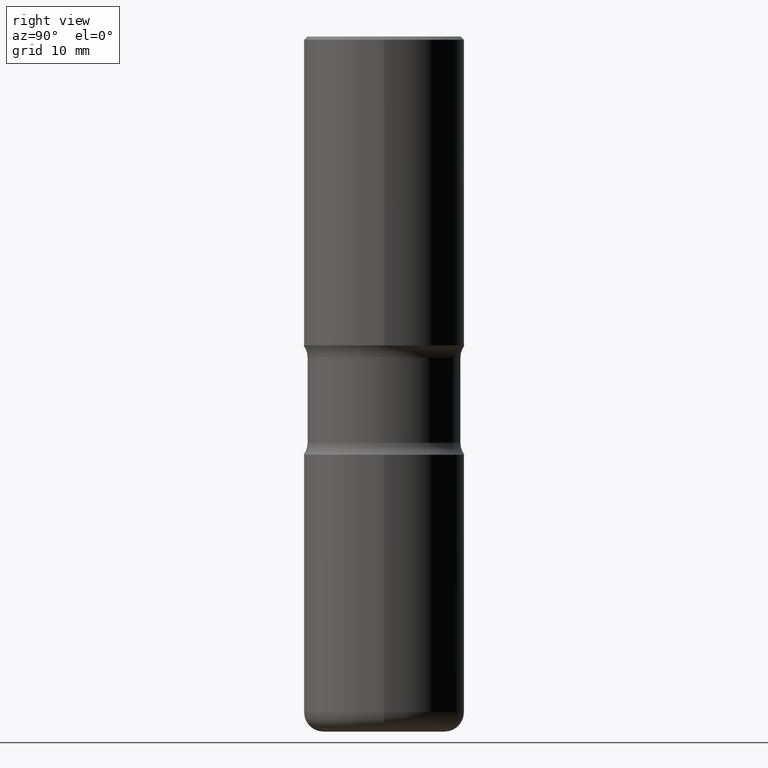
[diagram: clean part render]
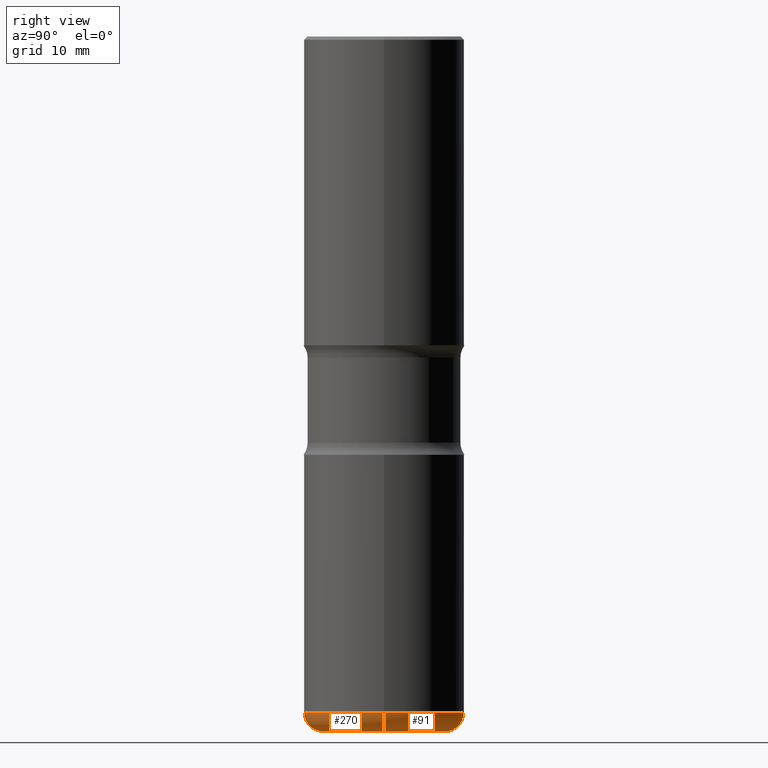
[diagram: same view with one multi-face feature highlighted, each face labeled with its STEP entity id]
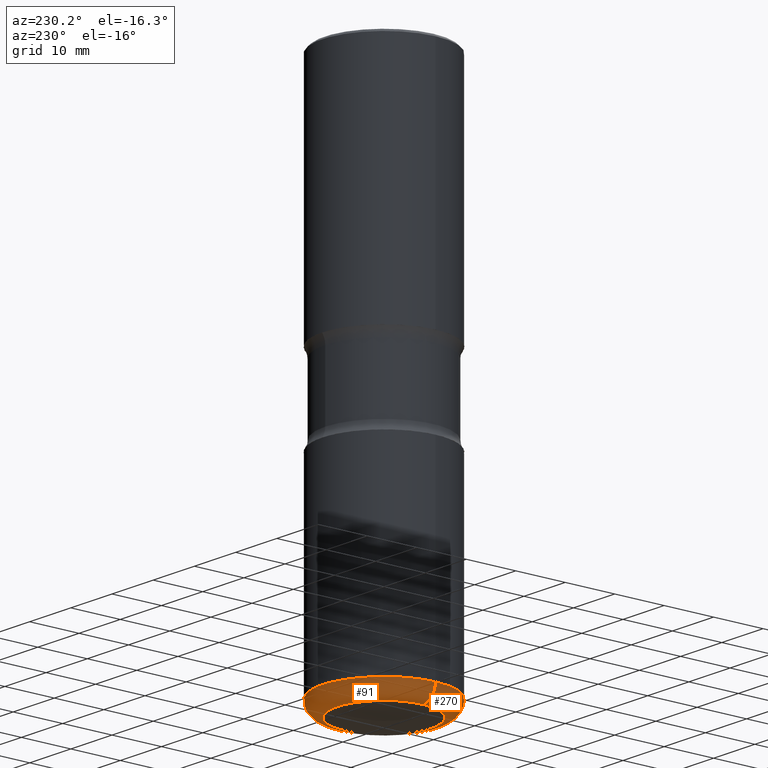
[diagram: same view with one multi-face feature highlighted, each face labeled with its STEP entity id]
A machine part, right view. The highlighted faces form ONE feature: a constant-radius fillet chain: 2 tangent blend faces with common blend radius 2.9997 mm. The faces share edges in the B-rep.
A second angle (auxiliary view) of the same feature is appended — it is thin or edge-on in the first view.
Their STEP definitions:
[1] entity #270 (Torus):
#15 = DIRECTION ( 'NONE',  ( 7.105427357601001859E-15, 1.000000000000000000, -3.491481338843145583E-15 ) ) ;
#28 = ORIENTED_EDGE ( 'NONE', *, *, #299, .T. ) ;
#75 = AXIS2_PLACEMENT_3D ( 'NONE', #378, #280, #501 ) ;
#84 = ORIENTED_EDGE ( 'NONE', *, *, #449, .F. ) ;
#92 = CARTESIAN_POINT ( 'NONE',  ( -0.3740500000000004377, -1.177564960353302285E-14, -4.133899999999999686 ) ) ;
#107 = VERTEX_POINT ( 'NONE', #526 ) ;
#120 = CIRCLE ( 'NONE', #268, 0.4921500000000003650 ) ;
#132 = CIRCLE ( 'NONE', #179, 0.3740500000000004377 ) ;
#134 = CARTESIAN_POINT ( 'NONE',  ( 1.010932349788873450E-28, -1.443343470664368071E-14, -4.133899999999999686 ) ) ;
#150 = DIRECTION ( 'NONE',  ( 1.000000000000000000, -6.982962677686265133E-15, 0.000000000000000000 ) ) ;
#155 = VERTEX_POINT ( 'NONE', #314 ) ;
#168 = CARTESIAN_POINT ( 'NONE',  ( 0.3740500000000004377, -1.745775584234960551E-14, -4.251999999999999780 ) ) ;
#174 = VERTEX_POINT ( 'NONE', #448 ) ;
#179 = AXIS2_PLACEMENT_3D ( 'NONE', #247, #192, #150 ) ;
#188 = DIRECTION ( 'NONE',  ( -1.000000000000000000, 7.105427357601006592E-15, 0.000000000000000000 ) ) ;
#192 = DIRECTION ( 'NONE',  ( -2.445468806185136597E-29, 3.491481338843145583E-15, 1.000000000000000000 ) ) ;
#237 = DIRECTION ( 'NONE',  ( -2.445468806185136597E-29, 3.491481338843145583E-15, 1.000000000000000000 ) ) ;
#247 = CARTESIAN_POINT ( 'NONE',  ( 1.039813336389919950E-28, -1.484577865276105326E-14, -4.251999999999999780 ) ) ;
#248 = CIRCLE ( 'NONE', #75, 0.1180999999999999689 ) ;
#268 = AXIS2_PLACEMENT_3D ( 'NONE', #134, #344, #388 ) ;
#270 = ADVANCED_FACE ( 'NONE', ( #452 ), #284, .T. ) ;
#280 = DIRECTION ( 'NONE',  ( -6.982962677686266711E-15, -1.000000000000000000, 3.491481338843145583E-15 ) ) ;
#284 = TOROIDAL_SURFACE ( 'NONE', #293, 0.3740500000000004377, 0.1180999999999999966 ) ;
#286 = ORIENTED_EDGE ( 'NONE', *, *, #549, .F. ) ;
#291 = AXIS2_PLACEMENT_3D ( 'NONE', #92, #15, #188 ) ;
#293 = AXIS2_PLACEMENT_3D ( 'NONE', #326, #237, #540 ) ;
#299 = EDGE_CURVE ( 'NONE', #155, #476, #132, .T. ) ;
#314 = CARTESIAN_POINT ( 'NONE',  ( -0.3740500000000004377, -1.156224609112537121E-14, -4.251999999999999780 ) ) ;
#326 = CARTESIAN_POINT ( 'NONE',  ( 1.010932349788873450E-28, -1.443343470664368071E-14, -4.133899999999999686 ) ) ;
#339 = ORIENTED_EDGE ( 'NONE', *, *, #340, .T. ) ;
#340 = EDGE_CURVE ( 'NONE', #476, #107, #248, .T. ) ;
#344 = DIRECTION ( 'NONE',  ( -2.445468806185136597E-29, 3.491481338843145583E-15, 1.000000000000000000 ) ) ;
#368 = EDGE_LOOP ( 'NONE', ( #286, #28, #339, #84 ) ) ;
#378 = CARTESIAN_POINT ( 'NONE',  ( 0.3740500000000004377, -1.704541189623222980E-14, -4.133899999999999686 ) ) ;
#388 = DIRECTION ( 'NONE',  ( 1.000000000000000000, -6.982962677686265133E-15, 0.000000000000000000 ) ) ;
#448 = CARTESIAN_POINT ( 'NONE',  ( -0.4921500000000003650, -1.093649863260034387E-14, -4.133899999999999686 ) ) ;
#449 = EDGE_CURVE ( 'NONE', #174, #107, #120, .T. ) ;
#452 = FACE_OUTER_BOUND ( 'NONE', #368, .T. ) ;
#476 = VERTEX_POINT ( 'NONE', #168 ) ;
#501 = DIRECTION ( 'NONE',  ( 1.000000000000000000, -6.982962677686258033E-15, 0.000000000000000000 ) ) ;
#512 = CIRCLE ( 'NONE', #291, 0.1180999999999999689 ) ;
#526 = CARTESIAN_POINT ( 'NONE',  ( 0.4921500000000003650, -1.787009978846697806E-14, -4.133899999999999686 ) ) ;
#540 = DIRECTION ( 'NONE',  ( 1.000000000000000000, -6.982962677686264344E-15, 4.883557194083111780E-29 ) ) ;
#549 = EDGE_CURVE ( 'NONE', #155, #174, #512, .T. ) ;
[2] entity #91 (Torus):
#5 = CIRCLE ( 'NONE', #361, 0.4921500000000003650 ) ;
#15 = DIRECTION ( 'NONE',  ( 7.105427357601001859E-15, 1.000000000000000000, -3.491481338843145583E-15 ) ) ;
#24 = ORIENTED_EDGE ( 'NONE', *, *, #340, .F. ) ;
#25 = DIRECTION ( 'NONE',  ( -2.445468806185136597E-29, 3.491481338843145583E-15, 1.000000000000000000 ) ) ;
#67 = TOROIDAL_SURFACE ( 'NONE', #430, 0.3740500000000004377, 0.1180999999999999966 ) ;
#75 = AXIS2_PLACEMENT_3D ( 'NONE', #378, #280, #501 ) ;
#77 = DIRECTION ( 'NONE',  ( -2.445468806185136597E-29, 3.491481338843145583E-15, 1.000000000000000000 ) ) ;
#91 = ADVANCED_FACE ( 'NONE', ( #272 ), #67, .T. ) ;
#92 = CARTESIAN_POINT ( 'NONE',  ( -0.3740500000000004377, -1.177564960353302285E-14, -4.133899999999999686 ) ) ;
#107 = VERTEX_POINT ( 'NONE', #526 ) ;
#109 = CARTESIAN_POINT ( 'NONE',  ( 1.039813336389919950E-28, -1.484577865276105326E-14, -4.251999999999999780 ) ) ;
#129 = EDGE_LOOP ( 'NONE', ( #514, #212, #327, #24 ) ) ;
#155 = VERTEX_POINT ( 'NONE', #314 ) ;
#168 = CARTESIAN_POINT ( 'NONE',  ( 0.3740500000000004377, -1.745775584234960551E-14, -4.251999999999999780 ) ) ;
#174 = VERTEX_POINT ( 'NONE', #448 ) ;
#188 = DIRECTION ( 'NONE',  ( -1.000000000000000000, 7.105427357601006592E-15, 0.000000000000000000 ) ) ;
#212 = ORIENTED_EDGE ( 'NONE', *, *, #549, .T. ) ;
#248 = CIRCLE ( 'NONE', #75, 0.1180999999999999689 ) ;
#255 = EDGE_CURVE ( 'NONE', #476, #155, #530, .T. ) ;
#272 = FACE_OUTER_BOUND ( 'NONE', #129, .T. ) ;
#280 = DIRECTION ( 'NONE',  ( -6.982962677686266711E-15, -1.000000000000000000, 3.491481338843145583E-15 ) ) ;
#291 = AXIS2_PLACEMENT_3D ( 'NONE', #92, #15, #188 ) ;
#302 = AXIS2_PLACEMENT_3D ( 'NONE', #109, #25, #371 ) ;
#314 = CARTESIAN_POINT ( 'NONE',  ( -0.3740500000000004377, -1.156224609112537121E-14, -4.251999999999999780 ) ) ;
#327 = ORIENTED_EDGE ( 'NONE', *, *, #392, .F. ) ;
#340 = EDGE_CURVE ( 'NONE', #476, #107, #248, .T. ) ;
#361 = AXIS2_PLACEMENT_3D ( 'NONE', #429, #77, #471 ) ;
#371 = DIRECTION ( 'NONE',  ( 1.000000000000000000, -6.982962677686265133E-15, 0.000000000000000000 ) ) ;
#378 = CARTESIAN_POINT ( 'NONE',  ( 0.3740500000000004377, -1.704541189623222980E-14, -4.133899999999999686 ) ) ;
#392 = EDGE_CURVE ( 'NONE', #107, #174, #5, .T. ) ;
#429 = CARTESIAN_POINT ( 'NONE',  ( 1.010932349788873450E-28, -1.443343470664368071E-14, -4.133899999999999686 ) ) ;
#430 = AXIS2_PLACEMENT_3D ( 'NONE', #534, #531, #533 ) ;
#448 = CARTESIAN_POINT ( 'NONE',  ( -0.4921500000000003650, -1.093649863260034387E-14, -4.133899999999999686 ) ) ;
#471 = DIRECTION ( 'NONE',  ( 1.000000000000000000, -6.982962677686265133E-15, 0.000000000000000000 ) ) ;
#476 = VERTEX_POINT ( 'NONE', #168 ) ;
#501 = DIRECTION ( 'NONE',  ( 1.000000000000000000, -6.982962677686258033E-15, 0.000000000000000000 ) ) ;
#512 = CIRCLE ( 'NONE', #291, 0.1180999999999999689 ) ;
#514 = ORIENTED_EDGE ( 'NONE', *, *, #255, .T. ) ;
#526 = CARTESIAN_POINT ( 'NONE',  ( 0.4921500000000003650, -1.787009978846697806E-14, -4.133899999999999686 ) ) ;
#530 = CIRCLE ( 'NONE', #302, 0.3740500000000004377 ) ;
#531 = DIRECTION ( 'NONE',  ( -2.445468806185136597E-29, 3.491481338843145583E-15, 1.000000000000000000 ) ) ;
#533 = DIRECTION ( 'NONE',  ( 1.000000000000000000, -6.982962677686264344E-15, 4.883557194083111780E-29 ) ) ;
#534 = CARTESIAN_POINT ( 'NONE',  ( 1.010932349788873450E-28, -1.443343470664368071E-14, -4.133899999999999686 ) ) ;
#549 = EDGE_CURVE ( 'NONE', #155, #174, #512, .T. ) ;